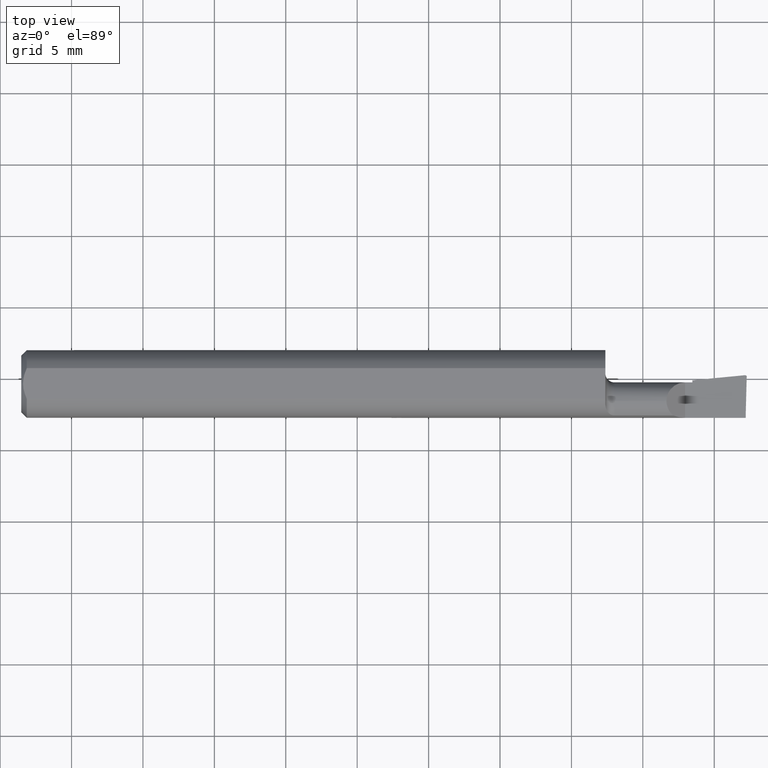
[diagram: clean part render]
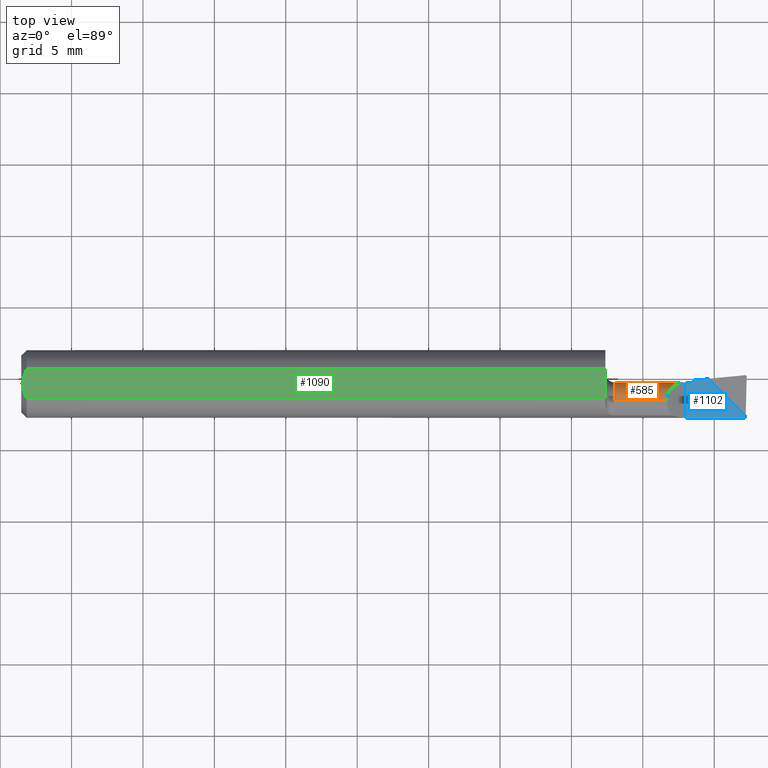
[diagram: same view with three faces highlighted in distinct colors, each labeled with its STEP entity id]
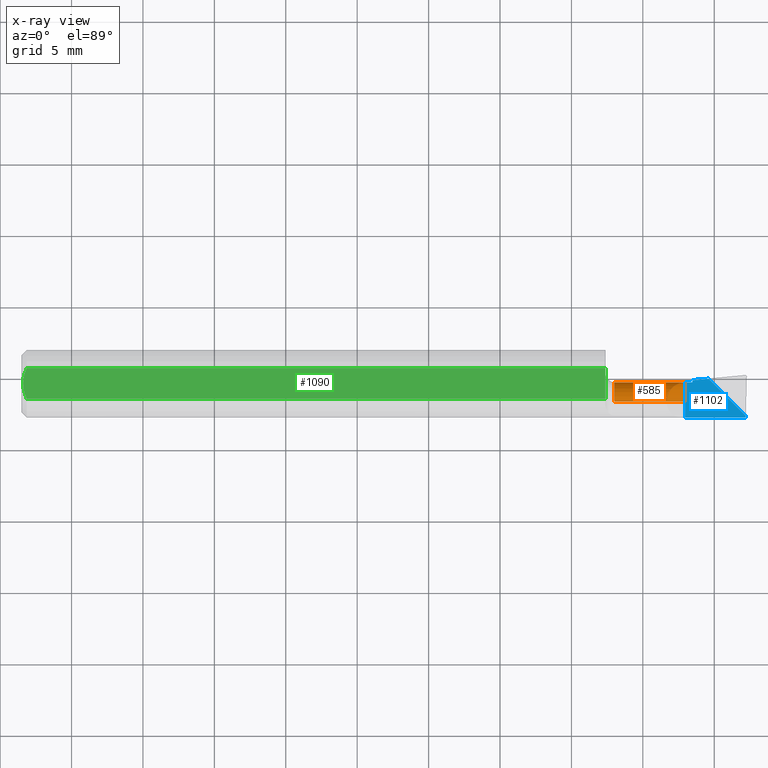
[diagram: x-ray of the same camera — body ghosted, the three highlighted faces saturated]
A machine part, top view with three faces highlighted in distinct colors.
The next image is the same camera in x-ray (body ghosted, the three faces saturated) — at least one of them is partly hidden behind the body in this view.
Their STEP definitions:

[orange] entity #585 — the highlighted cylindrical surface (edge-blend (fillet) strip) has radius 1.3208 mm, axis along (-1, -0, -0).
#24 = CARTESIAN_POINT ( 'NONE',  ( 1.847267659902522174, -0.005656000117532828525, -0.03265959792764433489 ) ) ;
#28 = CARTESIAN_POINT ( 'NONE',  ( 1.848709837145384727, -0.02304281384111854861, -0.04583606230860193947 ) ) ;
#32 = CARTESIAN_POINT ( 'NONE',  ( 1.635000000000000009, -0.04759999999999998954, 0.000000000000000000 ) ) ;
#75 = CARTESIAN_POINT ( 'NONE',  ( 1.635000000000000009, -0.04759999999999998260, -0.05199999999999999067 ) ) ;
#82 = DIRECTION ( 'NONE',  ( 1.000000000000000000, -0.000000000000000000, 0.000000000000000000 ) ) ;
#87 = ORIENTED_EDGE ( 'NONE', *, *, #476, .T. ) ;
#92 = CARTESIAN_POINT ( 'NONE',  ( 1.849999999999999867, -0.04759999999999998954, 0.000000000000000000 ) ) ;
#96 = ORIENTED_EDGE ( 'NONE', *, *, #302, .F. ) ;
#98 = DIRECTION ( 'NONE',  ( -1.000000000000000000, -0.000000000000000000, -0.000000000000000000 ) ) ;
#107 = VERTEX_POINT ( 'NONE', #848 ) ;
#118 = CARTESIAN_POINT ( 'NONE',  ( 1.846570941120235565, -0.0008295293068128806223, -0.02272714392830133684 ) ) ;
#121 = CIRCLE ( 'NONE', #1335, 0.05199999999999999067 ) ;
#138 =( BOUNDED_CURVE ( )  B_SPLINE_CURVE ( 3, ( #876, #509, #404, #744 ),
 .UNSPECIFIED., .F., .F. ) 
 B_SPLINE_CURVE_WITH_KNOTS ( ( 4, 4 ),
 ( 4.723927697969443784, 6.283185307179586232 ),
 .UNSPECIFIED. ) 
 CURVE ( )  GEOMETRIC_REPRESENTATION_ITEM ( )  RATIONAL_B_SPLINE_CURVE ( ( 1.000000000000000000, 0.8074496954073762112, 0.8074496954073762112, 1.000000000000000000 ) ) 
 REPRESENTATION_ITEM ( '' )  );
#141 = LINE ( 'NONE', #1177, #372 ) ;
#144 = CIRCLE ( 'NONE', #1022, 0.05199999999999999067 ) ;
#149 = EDGE_CURVE ( 'NONE', #770, #526, #867, .T. ) ;
#155 = AXIS2_PLACEMENT_3D ( 'NONE', #92, #541, #987 ) ;
#158 = DIRECTION ( 'NONE',  ( -1.000000000000000000, -0.000000000000000000, -0.000000000000000000 ) ) ;
#193 = CARTESIAN_POINT ( 'NONE',  ( 1.849999999999999867, -0.04759999999999998954, -0.05199999999999998374 ) ) ;
#197 = VERTEX_POINT ( 'NONE', #689 ) ;
#206 = VERTEX_POINT ( 'NONE', #467 ) ;
#225 = CARTESIAN_POINT ( 'NONE',  ( 1.829999999999999849, 0.004399999999999992459, -3.414809992080329023E-17 ) ) ;
#270 = DIRECTION ( 'NONE',  ( -1.000000000000000000, -0.000000000000000000, -0.000000000000000000 ) ) ;
#302 = EDGE_CURVE ( 'NONE', #339, #526, #141, .T. ) ;
#304 = AXIS2_PLACEMENT_3D ( 'NONE', #32, #1020, #596 ) ;
#311 = CARTESIAN_POINT ( 'NONE',  ( 1.829999999999999849, -0.04759999999999998954, 0.000000000000000000 ) ) ;
#339 = VERTEX_POINT ( 'NONE', #503 ) ;
#351 = ORIENTED_EDGE ( 'NONE', *, *, #149, .T. ) ;
#372 = VECTOR ( 'NONE', #158, 39.37007874015748143 ) ;
#395 = CARTESIAN_POINT ( 'NONE',  ( 1.849999999999999867, -0.04759999999999998954, 0.000000000000000000 ) ) ;
#404 = CARTESIAN_POINT ( 'NONE',  ( 1.778599999999999959, -0.01741706285029457138, 0.05199999999999999067 ) ) ;
#410 = EDGE_CURVE ( 'NONE', #477, #197, #554, .T. ) ;
#417 = CARTESIAN_POINT ( 'NONE',  ( 1.849999999999999867, -0.02278219510824144173, -0.04569547636642608268 ) ) ;
#436 = EDGE_CURVE ( 'NONE', #964, #206, #1278, .T. ) ;
#438 = CARTESIAN_POINT ( 'NONE',  ( 1.849999999999999867, -0.02278219510824144173, -0.04569547636642608268 ) ) ;
#442 = ORIENTED_EDGE ( 'NONE', *, *, #856, .T. ) ;
#453 = CARTESIAN_POINT ( 'NONE',  ( 1.847740523440699167, -0.0009425434642169555708, -0.02295971716114823813 ) ) ;
#467 = CARTESIAN_POINT ( 'NONE',  ( 1.849999999999999867, -0.001173760142252780123, -0.02342230246305696331 ) ) ;
#476 = EDGE_CURVE ( 'NONE', #477, #695, #1029, .T. ) ;
#477 = VERTEX_POINT ( 'NONE', #438 ) ;
#480 = DIRECTION ( 'NONE',  ( 1.000000000000000000, 0.000000000000000000, 0.000000000000000000 ) ) ;
#500 = VERTEX_POINT ( 'NONE', #225 ) ;
#503 = CARTESIAN_POINT ( 'NONE',  ( 1.778599999999999737, -0.04759999999999998954, 0.05199999999999999067 ) ) ;
#509 = CARTESIAN_POINT ( 'NONE',  ( 1.799819072136362941, 0.004048273686897159614, 0.03078092786363714056 ) ) ;
#526 = VERTEX_POINT ( 'NONE', #958 ) ;
#541 = DIRECTION ( 'NONE',  ( -1.000000000000000000, -0.000000000000000000, -0.000000000000000000 ) ) ;
#552 = ORIENTED_EDGE ( 'NONE', *, *, #1049, .F. ) ;
#554 =( BOUNDED_CURVE ( )  B_SPLINE_CURVE ( 3, ( #417, #780, #660, #1407 ),
 .UNSPECIFIED., .F., .T. ) 
 B_SPLINE_CURVE_WITH_KNOTS ( ( 4, 4 ),
 ( 3.444597846623071558, 3.450292452708774604 ),
 .UNSPECIFIED. ) 
 CURVE ( )  GEOMETRIC_REPRESENTATION_ITEM ( )  RATIONAL_B_SPLINE_CURVE ( ( 1.000000000000000000, 0.9999972976236197741, 0.9999972976236197741, 1.000000000000000000 ) ) 
 REPRESENTATION_ITEM ( '' )  );
#585 = ADVANCED_FACE ( 'NONE', ( #722 ), #1399, .T. ) ;
#596 = DIRECTION ( 'NONE',  ( 0.000000000000000000, 0.000000000000000000, -1.000000000000000000 ) ) ;
#617 = CARTESIAN_POINT ( 'NONE',  ( 1.849999999999999867, 0.004399999999999992459, -3.414809992080329023E-17 ) ) ;
#643 = CARTESIAN_POINT ( 'NONE',  ( 1.848883564264995227, -0.001057289203991642473, -0.02319144097005480104 ) ) ;
#649 = ORIENTED_EDGE ( 'NONE', *, *, #1000, .F. ) ;
#656 = VERTEX_POINT ( 'NONE', #617 ) ;
#660 = CARTESIAN_POINT ( 'NONE',  ( 1.849143768777699259, -0.02295580761710086168, -0.04578944774503410781 ) ) ;
#665 = ORIENTED_EDGE ( 'NONE', *, *, #1109, .F. ) ;
#681 = EDGE_LOOP ( 'NONE', ( #87, #823, #351, #96, #665, #552, #442, #1390, #801, #649, #850 ) ) ;
#689 = CARTESIAN_POINT ( 'NONE',  ( 1.848709837145384727, -0.02304281384111854861, -0.04583606230860193947 ) ) ;
#695 = VERTEX_POINT ( 'NONE', #193 ) ;
#722 = FACE_OUTER_BOUND ( 'NONE', #681, .T. ) ;
#744 = CARTESIAN_POINT ( 'NONE',  ( 1.778599999999999737, -0.04759999999999998954, 0.05199999999999999067 ) ) ;
#770 = VERTEX_POINT ( 'NONE', #75 ) ;
#780 = CARTESIAN_POINT ( 'NONE',  ( 1.849573824224741925, -0.02286893447137791288, -0.04574258563766975955 ) ) ;
#782 = AXIS2_PLACEMENT_3D ( 'NONE', #1273, #270, #1162 ) ;
#790 = CARTESIAN_POINT ( 'NONE',  ( 1.848004540366569248, -0.01330879633725956870, -0.04062095289744262899 ) ) ;
#801 = ORIENTED_EDGE ( 'NONE', *, *, #436, .F. ) ;
#823 = ORIENTED_EDGE ( 'NONE', *, *, #1338, .T. ) ;
#848 = CARTESIAN_POINT ( 'NONE',  ( 1.829999999999999849, 0.004396538346316851247, 0.0006000000000001247391 ) ) ;
#850 = ORIENTED_EDGE ( 'NONE', *, *, #410, .F. ) ;
#851 = DIRECTION ( 'NONE',  ( -1.000000000000000000, -0.000000000000000000, -0.000000000000000000 ) ) ;
#853 = LINE ( 'NONE', #1432, #935 ) ;
#856 = EDGE_CURVE ( 'NONE', #500, #656, #1045, .T. ) ;
#861 = VECTOR ( 'NONE', #480, 39.37007874015748143 ) ;
#862 = CARTESIAN_POINT ( 'NONE',  ( 1.846570941120235565, -0.0008295293068128806223, -0.02272714392830133684 ) ) ;
#867 = CIRCLE ( 'NONE', #304, 0.05199999999999999067 ) ;
#876 = CARTESIAN_POINT ( 'NONE',  ( 1.829999999999999849, 0.004396538346316851247, 0.0006000000000001247391 ) ) ;
#935 = VECTOR ( 'NONE', #98, 39.37007874015748143 ) ;
#958 = CARTESIAN_POINT ( 'NONE',  ( 1.635000000000000009, -0.04759999999999998954, 0.05199999999999999067 ) ) ;
#964 = VERTEX_POINT ( 'NONE', #862 ) ;
#987 = DIRECTION ( 'NONE',  ( 0.000000000000000000, 0.000000000000000000, 1.000000000000000000 ) ) ;
#1000 = EDGE_CURVE ( 'NONE', #197, #964, #1140, .T. ) ;
#1020 = DIRECTION ( 'NONE',  ( 1.000000000000000000, 0.000000000000000000, 0.000000000000000000 ) ) ;
#1022 = AXIS2_PLACEMENT_3D ( 'NONE', #395, #851, #1290 ) ;
#1029 = CIRCLE ( 'NONE', #155, 0.05199999999999999067 ) ;
#1045 = LINE ( 'NONE', #1176, #861 ) ;
#1049 = EDGE_CURVE ( 'NONE', #500, #107, #121, .T. ) ;
#1109 = EDGE_CURVE ( 'NONE', #107, #339, #138, .T. ) ;
#1113 = EDGE_CURVE ( 'NONE', #656, #206, #144, .T. ) ;
#1140 =( BOUNDED_CURVE ( )  B_SPLINE_CURVE ( 3, ( #28, #790, #24, #118 ),
 .UNSPECIFIED., .F., .T. ) 
 B_SPLINE_CURVE_WITH_KNOTS ( ( 4, 4 ),
 ( 4.417960088013007436, 5.044582895157098790 ),
 .UNSPECIFIED. ) 
 CURVE ( )  GEOMETRIC_REPRESENTATION_ITEM ( )  RATIONAL_B_SPLINE_CURVE ( ( 1.000000000000000000, 0.9675454520813421277, 0.9675454520813421277, 1.000000000000000000 ) ) 
 REPRESENTATION_ITEM ( '' )  );
#1162 = DIRECTION ( 'NONE',  ( 0.000000000000000000, 0.000000000000000000, 1.000000000000000000 ) ) ;
#1176 = CARTESIAN_POINT ( 'NONE',  ( 1.610000000000000098, 0.004399999999999992459, -3.414809992080329023E-17 ) ) ;
#1177 = CARTESIAN_POINT ( 'NONE',  ( 1.610000000000000098, -0.04759999999999998954, 0.05199999999999999067 ) ) ;
#1203 = CARTESIAN_POINT ( 'NONE',  ( 1.849999999999999867, -0.001173760142252780123, -0.02342230246305696331 ) ) ;
#1273 = CARTESIAN_POINT ( 'NONE',  ( 1.610000000000000098, -0.04759999999999998954, 0.000000000000000000 ) ) ;
#1278 =( BOUNDED_CURVE ( )  B_SPLINE_CURVE ( 3, ( #1436, #453, #643, #1203 ),
 .UNSPECIFIED., .F., .T. ) 
 B_SPLINE_CURVE_WITH_KNOTS ( ( 4, 4 ),
 ( 2.823669645564684583, 2.838587460556514674 ),
 .UNSPECIFIED. ) 
 CURVE ( )  GEOMETRIC_REPRESENTATION_ITEM ( )  RATIONAL_B_SPLINE_CURVE ( ( 1.000000000000000000, 0.9999814549856358425, 0.9999814549856358425, 1.000000000000000000 ) ) 
 REPRESENTATION_ITEM ( '' )  );
#1290 = DIRECTION ( 'NONE',  ( 0.000000000000000000, 0.000000000000000000, 1.000000000000000000 ) ) ;
#1302 = DIRECTION ( 'NONE',  ( 0.000000000000000000, 0.000000000000000000, -1.000000000000000000 ) ) ;
#1335 = AXIS2_PLACEMENT_3D ( 'NONE', #311, #82, #1302 ) ;
#1338 = EDGE_CURVE ( 'NONE', #695, #770, #853, .T. ) ;
#1390 = ORIENTED_EDGE ( 'NONE', *, *, #1113, .T. ) ;
#1399 = CYLINDRICAL_SURFACE ( 'NONE', #782, 0.05199999999999999067 ) ;
#1407 = CARTESIAN_POINT ( 'NONE',  ( 1.848709837145384727, -0.02304281384111854861, -0.04583606230860193947 ) ) ;
#1432 = CARTESIAN_POINT ( 'NONE',  ( 1.610000000000000098, -0.04759999999999998260, -0.05199999999999999067 ) ) ;
#1436 = CARTESIAN_POINT ( 'NONE',  ( 1.846570941120235565, -0.0008295293068128806223, -0.02272714392830133684 ) ) ;

[blue] entity #1102 — the highlighted planar face has unit normal (0, 0, -1).
#8 = CARTESIAN_POINT ( 'NONE',  ( 1.895100657815493861, 0.01429934218450593444, 0.000000000000000000 ) ) ;
#26 = VECTOR ( 'NONE', #398, 39.37007874015748143 ) ;
#41 = ORIENTED_EDGE ( 'NONE', *, *, #140, .F. ) ;
#42 = VECTOR ( 'NONE', #361, 39.37007874015748854 ) ;
#68 = LINE ( 'NONE', #517, #499 ) ;
#71 = LINE ( 'NONE', #966, #198 ) ;
#129 = ORIENTED_EDGE ( 'NONE', *, *, #232, .F. ) ;
#140 = EDGE_CURVE ( 'NONE', #1412, #1337, #68, .T. ) ;
#143 = LINE ( 'NONE', #1381, #26 ) ;
#148 = VERTEX_POINT ( 'NONE', #528 ) ;
#174 = CARTESIAN_POINT ( 'NONE',  ( 1.829999999999999849, -0.09360000000000001652, -3.414809992080329023E-17 ) ) ;
#182 = CARTESIAN_POINT ( 'NONE',  ( 1.996886856354181505, -0.09360000000000003040, 0.000000000000000000 ) ) ;
#198 = VECTOR ( 'NONE', #532, 39.37007874015748143 ) ;
#224 = CARTESIAN_POINT ( 'NONE',  ( 2.002533996278424766, 0.1204481092016789767, -3.414809992080329023E-17 ) ) ;
#225 = CARTESIAN_POINT ( 'NONE',  ( 1.829999999999999849, 0.004399999999999992459, -3.414809992080329023E-17 ) ) ;
#232 = EDGE_CURVE ( 'NONE', #490, #1125, #589, .T. ) ;
#277 = ORIENTED_EDGE ( 'NONE', *, *, #856, .F. ) ;
#361 = DIRECTION ( 'NONE',  ( 0.7071067811865437980, -0.7071067811865511255, 0.000000000000000000 ) ) ;
#390 = CARTESIAN_POINT ( 'NONE',  ( 1.829999999999999849, 0.1250000000000000000, -3.414809992080329023E-17 ) ) ;
#398 = DIRECTION ( 'NONE',  ( -0.9953961983671787417, -0.09584575252022428660, 0.000000000000000000 ) ) ;
#471 = DIRECTION ( 'NONE',  ( 0.02637339639455478849, 0.9996521614854917415, 0.000000000000000000 ) ) ;
#480 = DIRECTION ( 'NONE',  ( 1.000000000000000000, 0.000000000000000000, 0.000000000000000000 ) ) ;
#490 = VERTEX_POINT ( 'NONE', #8 ) ;
#499 = VECTOR ( 'NONE', #963, 39.37007874015748143 ) ;
#500 = VERTEX_POINT ( 'NONE', #225 ) ;
#517 = CARTESIAN_POINT ( 'NONE',  ( 2.000000000000000000, -0.09360000000000001652, -3.414809992080329023E-17 ) ) ;
#528 = CARTESIAN_POINT ( 'NONE',  ( 1.849999999999999867, 0.009956642770369153808, -3.414809992080329023E-17 ) ) ;
#532 = DIRECTION ( 'NONE',  ( 0.000000000000000000, 1.000000000000000000, 0.000000000000000000 ) ) ;
#563 = EDGE_CURVE ( 'NONE', #1337, #500, #1055, .T. ) ;
#589 = LINE ( 'NONE', #1347, #42 ) ;
#617 = CARTESIAN_POINT ( 'NONE',  ( 1.849999999999999867, 0.004399999999999992459, -3.414809992080329023E-17 ) ) ;
#618 = ORIENTED_EDGE ( 'NONE', *, *, #563, .F. ) ;
#627 = EDGE_CURVE ( 'NONE', #490, #148, #143, .T. ) ;
#656 = VERTEX_POINT ( 'NONE', #617 ) ;
#734 = CARTESIAN_POINT ( 'NONE',  ( 1.997043991192928747, -0.08764399119292992646, 0.000000000000000000 ) ) ;
#767 = VECTOR ( 'NONE', #471, 39.37007874015748143 ) ;
#845 = ORIENTED_EDGE ( 'NONE', *, *, #971, .F. ) ;
#856 = EDGE_CURVE ( 'NONE', #500, #656, #1045, .T. ) ;
#861 = VECTOR ( 'NONE', #480, 39.37007874015748143 ) ;
#940 = AXIS2_PLACEMENT_3D ( 'NONE', #977, #1413, #1406 ) ;
#948 = DIRECTION ( 'NONE',  ( -0.000000000000000000, 1.000000000000000000, -0.000000000000000000 ) ) ;
#963 = DIRECTION ( 'NONE',  ( -1.000000000000000000, -0.000000000000000000, -0.000000000000000000 ) ) ;
#965 = FACE_OUTER_BOUND ( 'NONE', #1217, .T. ) ;
#966 = CARTESIAN_POINT ( 'NONE',  ( 1.849999999999999867, 0.1250000000000000000, -3.414809992080329023E-17 ) ) ;
#971 = EDGE_CURVE ( 'NONE', #656, #148, #71, .T. ) ;
#977 = CARTESIAN_POINT ( 'NONE',  ( 1.829999999999999849, 0.1250000000000000000, -3.414809992080329023E-17 ) ) ;
#1033 = EDGE_CURVE ( 'NONE', #1412, #1125, #1228, .T. ) ;
#1045 = LINE ( 'NONE', #1176, #861 ) ;
#1055 = LINE ( 'NONE', #390, #1387 ) ;
#1102 = ADVANCED_FACE ( 'NONE', ( #965 ), #1421, .F. ) ;
#1112 = ORIENTED_EDGE ( 'NONE', *, *, #1033, .T. ) ;
#1125 = VERTEX_POINT ( 'NONE', #734 ) ;
#1176 = CARTESIAN_POINT ( 'NONE',  ( 1.610000000000000098, 0.004399999999999992459, -3.414809992080329023E-17 ) ) ;
#1217 = EDGE_LOOP ( 'NONE', ( #1112, #129, #1383, #845, #277, #618, #41 ) ) ;
#1228 = LINE ( 'NONE', #224, #767 ) ;
#1337 = VERTEX_POINT ( 'NONE', #174 ) ;
#1347 = CARTESIAN_POINT ( 'NONE',  ( 1.885000000000000009, 0.02439999999999998420, 0.000000000000000000 ) ) ;
#1381 = CARTESIAN_POINT ( 'NONE',  ( 1.841159381874388545, 0.009105388065576137252, -3.414809992080329023E-17 ) ) ;
#1383 = ORIENTED_EDGE ( 'NONE', *, *, #627, .T. ) ;
#1387 = VECTOR ( 'NONE', #948, 39.37007874015748143 ) ;
#1406 = DIRECTION ( 'NONE',  ( -1.000000000000000000, 0.000000000000000000, 0.000000000000000000 ) ) ;
#1412 = VERTEX_POINT ( 'NONE', #182 ) ;
#1413 = DIRECTION ( 'NONE',  ( -0.000000000000000000, 0.000000000000000000, -1.000000000000000000 ) ) ;
#1421 = PLANE ( 'NONE',  #940 ) ;

[green] entity #1090 — the highlighted planar face has unit normal (0, 0, -1).
#2 = EDGE_CURVE ( 'NONE', #975, #944, #59, .T. ) ;
#6 = VECTOR ( 'NONE', #1195, 39.37007874015748143 ) ;
#15 = AXIS2_PLACEMENT_3D ( 'NONE', #1395, #771, #199 ) ;
#59 = LINE ( 'NONE', #507, #464 ) ;
#122 = CARTESIAN_POINT ( 'NONE',  ( 0.005981945000908672240, -0.01453549720624410825, 0.08360000000000003539 ) ) ;
#127 = CARTESIAN_POINT ( 'NONE',  ( 1.610000000000000098, 0.04209513035969836975, 0.08360000000000003539 ) ) ;
#154 = VERTEX_POINT ( 'NONE', #917 ) ;
#160 = EDGE_CURVE ( 'NONE', #154, #579, #347, .T. ) ;
#199 = DIRECTION ( 'NONE',  ( -1.000000000000000000, 0.000000000000000000, 0.000000000000000000 ) ) ;
#215 = EDGE_CURVE ( 'NONE', #579, #944, #597, .T. ) ;
#252 = CARTESIAN_POINT ( 'NONE',  ( 0.009483685532750415342, -0.02856415438847178037, 0.08360000000000003539 ) ) ;
#272 = ORIENTED_EDGE ( 'NONE', *, *, #215, .T. ) ;
#282 = FACE_OUTER_BOUND ( 'NONE', #657, .T. ) ;
#286 = VERTEX_POINT ( 'NONE', #127 ) ;
#320 = CARTESIAN_POINT ( 'NONE',  ( 2.000000000000000000, 0.04209513035969836975, 0.08360000000000003539 ) ) ;
#347 = B_SPLINE_CURVE_WITH_KNOTS ( 'NONE', 3,
 ( #1336, #1340, #1355, #365, #685, #698 ),
 .UNSPECIFIED., .F., .F.,
 ( 4, 2, 4 ),
 ( 0.001498230153270217399, 0.002046825164355169611, 0.002595420175440121824 ),
 .UNSPECIFIED. ) ;
#353 = EDGE_CURVE ( 'NONE', #286, #975, #1097, .T. ) ;
#365 = CARTESIAN_POINT ( 'NONE',  ( 0.005976064474242884228, 0.01450833282979353475, 0.08360000000000004927 ) ) ;
#396 = CARTESIAN_POINT ( 'NONE',  ( 0.01499999999997156559, -0.04209513035984144974, 0.08360000000000003539 ) ) ;
#434 = LINE ( 'NONE', #320, #825 ) ;
#464 = VECTOR ( 'NONE', #793, 39.37007874015748143 ) ;
#507 = CARTESIAN_POINT ( 'NONE',  ( 2.000000000000000000, -0.04209513035969836975, 0.08360000000000003539 ) ) ;
#579 = VERTEX_POINT ( 'NONE', #1388 ) ;
#597 = B_SPLINE_CURVE_WITH_KNOTS ( 'NONE', 3,
 ( #808, #1233, #122, #252, #1248, #1127 ),
 .UNSPECIFIED., .F., .F.,
 ( 4, 2, 4 ),
 ( 0.002595420175440121824, 0.003143963582281870776, 0.003692506989123619729 ),
 .UNSPECIFIED. ) ;
#642 = PLANE ( 'NONE',  #15 ) ;
#657 = EDGE_LOOP ( 'NONE', ( #797, #1285, #1031, #272, #1210 ) ) ;
#685 = CARTESIAN_POINT ( 'NONE',  ( 0.005000000000000227353, 0.007340705555993273443, 0.08360000000000004927 ) ) ;
#698 = CARTESIAN_POINT ( 'NONE',  ( 0.005000000000000235159, 1.023804700982173805E-17, 0.08360000000000003539 ) ) ;
#753 = DIRECTION ( 'NONE',  ( 1.000000000000000000, 0.000000000000000000, 0.000000000000000000 ) ) ;
#771 = DIRECTION ( 'NONE',  ( -0.000000000000000000, 0.000000000000000000, -1.000000000000000000 ) ) ;
#793 = DIRECTION ( 'NONE',  ( -1.000000000000000000, -0.000000000000000000, -0.000000000000000000 ) ) ;
#797 = ORIENTED_EDGE ( 'NONE', *, *, #353, .F. ) ;
#808 = CARTESIAN_POINT ( 'NONE',  ( 0.005000000000000235159, 1.023804700982173805E-17, 0.08360000000000003539 ) ) ;
#825 = VECTOR ( 'NONE', #753, 39.37007874015748143 ) ;
#917 = CARTESIAN_POINT ( 'NONE',  ( 0.01500000000000024925, 0.04209513035969833505, 0.08360000000000003539 ) ) ;
#944 = VERTEX_POINT ( 'NONE', #396 ) ;
#967 = CARTESIAN_POINT ( 'NONE',  ( 1.610000000000000098, 0.04793338999999998545, 0.08360000000000003539 ) ) ;
#975 = VERTEX_POINT ( 'NONE', #1120 ) ;
#1031 = ORIENTED_EDGE ( 'NONE', *, *, #160, .T. ) ;
#1090 = ADVANCED_FACE ( 'NONE', ( #282 ), #642, .F. ) ;
#1097 = LINE ( 'NONE', #967, #6 ) ;
#1120 = CARTESIAN_POINT ( 'NONE',  ( 1.610000000000000098, -0.04209513035975542827, 0.08359999999997128062 ) ) ;
#1123 = EDGE_CURVE ( 'NONE', #154, #286, #434, .T. ) ;
#1127 = CARTESIAN_POINT ( 'NONE',  ( 0.01499999999997156559, -0.04209513035984144974, 0.08360000000000003539 ) ) ;
#1195 = DIRECTION ( 'NONE',  ( 0.000000000000000000, -1.000000000000000000, 0.000000000000000000 ) ) ;
#1210 = ORIENTED_EDGE ( 'NONE', *, *, #2, .F. ) ;
#1233 = CARTESIAN_POINT ( 'NONE',  ( 0.005000000000000223883, -0.007340015043780872238, 0.08360000000000000764 ) ) ;
#1248 = CARTESIAN_POINT ( 'NONE',  ( 0.01202468825749133940, -0.03547942025930518606, 0.08360000000000003539 ) ) ;
#1285 = ORIENTED_EDGE ( 'NONE', *, *, #1123, .F. ) ;
#1336 = CARTESIAN_POINT ( 'NONE',  ( 0.01500000000000024925, 0.04209513035969833505, 0.08360000000000003539 ) ) ;
#1340 = CARTESIAN_POINT ( 'NONE',  ( 0.01203159747439047807, 0.03549478314559911807, 0.08360000000000003539 ) ) ;
#1355 = CARTESIAN_POINT ( 'NONE',  ( 0.009483687754784119947, 0.02856776309113259749, 0.08360000000000004927 ) ) ;
#1388 = CARTESIAN_POINT ( 'NONE',  ( 0.005000000000000235159, 1.023804700982173805E-17, 0.08360000000000003539 ) ) ;
#1395 = CARTESIAN_POINT ( 'NONE',  ( 0.000000000000000000, 0.04793338999999998545, 0.08360000000000003539 ) ) ;